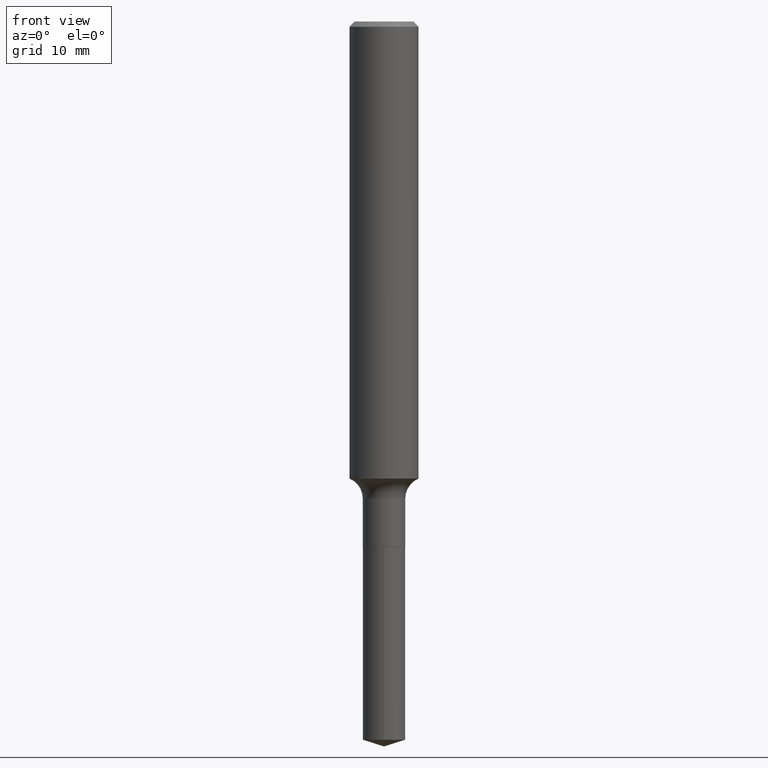
[diagram: clean part render]
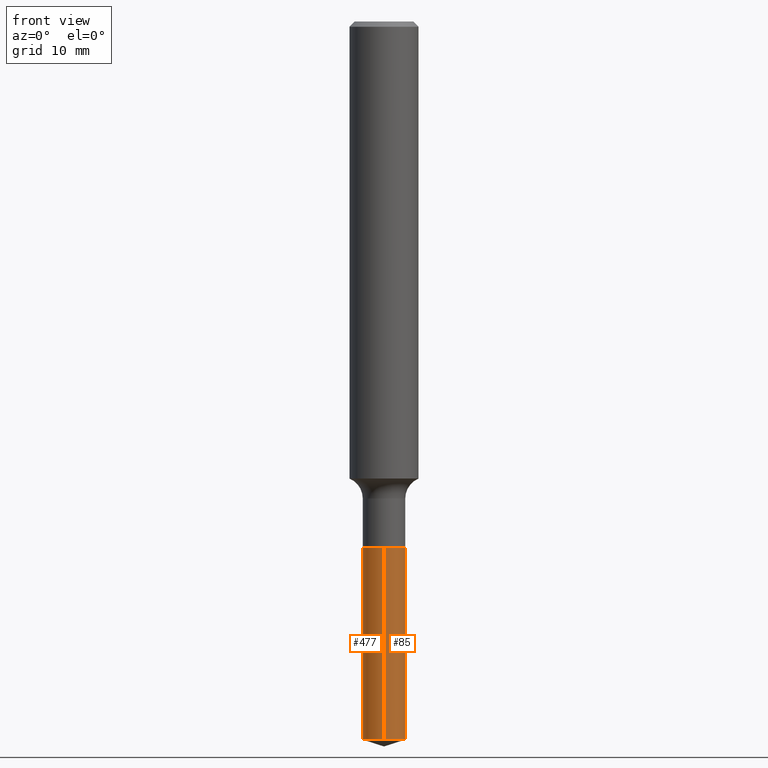
[diagram: same view with one multi-face feature highlighted, each face labeled with its STEP entity id]
A machine part, front view. The highlighted faces form ONE feature: a constant-radius fillet chain: 2 tangent blend faces with common blend radius 1.9558 mm. The faces share edges in the B-rep.
Their STEP definitions:
[1] entity #477 (Cylinder):
#1 = VERTEX_POINT ( 'NONE', #237 ) ;
#14 = CARTESIAN_POINT ( 'NONE',  ( 5.471179065353404421E-16, 0.07699999999999086742, -2.600721993256319475 ) ) ;
#20 = EDGE_CURVE ( 'NONE', #35, #359, #177, .T. ) ;
#23 = CARTESIAN_POINT ( 'NONE',  ( 6.359965980900373089E-29, -9.080398838931874452E-15, -2.600721993256319475 ) ) ;
#35 = VERTEX_POINT ( 'NONE', #122 ) ;
#38 = VERTEX_POINT ( 'NONE', #14 ) ;
#69 = FACE_OUTER_BOUND ( 'NONE', #370, .T. ) ;
#92 = CARTESIAN_POINT ( 'NONE',  ( 5.471179065353235802E-16, 0.07699999999999335154, -1.904000000000000137 ) ) ;
#94 = CARTESIAN_POINT ( 'NONE',  ( -5.376881261817957849E-16, -0.07700000000000663258, -1.903999999999999693 ) ) ;
#96 = DIRECTION ( 'NONE',  ( -2.445442214276503525E-29, 3.491519419969825765E-15, 1.000000000000000000 ) ) ;
#104 = DIRECTION ( 'NONE',  ( -2.445442214276503244E-29, 3.491519419969825765E-15, 1.000000000000000000 ) ) ;
#117 = AXIS2_PLACEMENT_3D ( 'NONE', #297, #104, #300 ) ;
#122 = CARTESIAN_POINT ( 'NONE',  ( 5.471179065353406393E-16, 0.07699999999999335154, -1.904000000000000137 ) ) ;
#138 = LINE ( 'NONE', #94, #413 ) ;
#157 = CARTESIAN_POINT ( 'NONE',  ( 4.656172606976500152E-29, -6.647780469157349069E-15, -1.903999999999999915 ) ) ;
#160 = DIRECTION ( 'NONE',  ( -2.445442214276503244E-29, 3.491519419969825765E-15, 1.000000000000000000 ) ) ;
#163 = ORIENTED_EDGE ( 'NONE', *, *, #20, .F. ) ;
#177 = CIRCLE ( 'NONE', #265, 0.07699999999999998512 ) ;
#201 = VECTOR ( 'NONE', #96, 39.37007874015748143 ) ;
#220 = AXIS2_PLACEMENT_3D ( 'NONE', #23, #402, #289 ) ;
#225 = EDGE_CURVE ( 'NONE', #1, #359, #138, .T. ) ;
#237 = CARTESIAN_POINT ( 'NONE',  ( -5.376881261817786271E-16, -0.07700000000000904732, -2.600721993256319475 ) ) ;
#247 = LINE ( 'NONE', #92, #201 ) ;
#265 = AXIS2_PLACEMENT_3D ( 'NONE', #157, #160, #273 ) ;
#268 = ORIENTED_EDGE ( 'NONE', *, *, #351, .T. ) ;
#273 = DIRECTION ( 'NONE',  ( -6.982962677686266711E-15, -1.000000000000000000, 3.547854537226316370E-15 ) ) ;
#289 = DIRECTION ( 'NONE',  ( -6.982962677686266711E-15, -1.000000000000000000, 0.000000000000000000 ) ) ;
#294 = ORIENTED_EDGE ( 'NONE', *, *, #225, .T. ) ;
#297 = CARTESIAN_POINT ( 'NONE',  ( 4.656172606976500152E-29, -6.647780469157349069E-15, -1.903999999999999915 ) ) ;
#300 = DIRECTION ( 'NONE',  ( -6.982962677686266711E-15, -1.000000000000000000, 3.547854537226316370E-15 ) ) ;
#336 = EDGE_CURVE ( 'NONE', #38, #35, #247, .T. ) ;
#351 = EDGE_CURVE ( 'NONE', #38, #1, #415, .T. ) ;
#359 = VERTEX_POINT ( 'NONE', #366 ) ;
#366 = CARTESIAN_POINT ( 'NONE',  ( -5.376881261817957849E-16, -0.07700000000000663258, -1.903999999999999693 ) ) ;
#370 = EDGE_LOOP ( 'NONE', ( #485, #268, #294, #163 ) ) ;
#402 = DIRECTION ( 'NONE',  ( -2.445442214276503244E-29, 3.491519419969825765E-15, 1.000000000000000000 ) ) ;
#413 = VECTOR ( 'NONE', #441, 39.37007874015748143 ) ;
#415 = CIRCLE ( 'NONE', #220, 0.07699999999999998512 ) ;
#441 = DIRECTION ( 'NONE',  ( -2.445442214276503525E-29, 3.491519419969825765E-15, 1.000000000000000000 ) ) ;
#477 = ADVANCED_FACE ( 'NONE', ( #69 ), #487, .T. ) ;
#485 = ORIENTED_EDGE ( 'NONE', *, *, #336, .F. ) ;
#487 = CYLINDRICAL_SURFACE ( 'NONE', #117, 0.07699999999999998512 ) ;
[2] entity #85 (Cylinder):
#1 = VERTEX_POINT ( 'NONE', #237 ) ;
#14 = CARTESIAN_POINT ( 'NONE',  ( 5.471179065353404421E-16, 0.07699999999999086742, -2.600721993256319475 ) ) ;
#21 = DIRECTION ( 'NONE',  ( -6.982962677686266711E-15, -1.000000000000000000, 0.000000000000000000 ) ) ;
#25 = DIRECTION ( 'NONE',  ( -2.445442214276503244E-29, 3.491519419969825765E-15, 1.000000000000000000 ) ) ;
#33 = EDGE_CURVE ( 'NONE', #359, #35, #58, .T. ) ;
#35 = VERTEX_POINT ( 'NONE', #122 ) ;
#38 = VERTEX_POINT ( 'NONE', #14 ) ;
#48 = AXIS2_PLACEMENT_3D ( 'NONE', #281, #235, #245 ) ;
#58 = CIRCLE ( 'NONE', #48, 0.07699999999999998512 ) ;
#61 = EDGE_LOOP ( 'NONE', ( #367, #153, #280, #373 ) ) ;
#65 = CARTESIAN_POINT ( 'NONE',  ( 6.359965980900373089E-29, -9.080398838931874452E-15, -2.600721993256319475 ) ) ;
#85 = ADVANCED_FACE ( 'NONE', ( #240 ), #429, .T. ) ;
#92 = CARTESIAN_POINT ( 'NONE',  ( 5.471179065353235802E-16, 0.07699999999999335154, -1.904000000000000137 ) ) ;
#94 = CARTESIAN_POINT ( 'NONE',  ( -5.376881261817957849E-16, -0.07700000000000663258, -1.903999999999999693 ) ) ;
#96 = DIRECTION ( 'NONE',  ( -2.445442214276503525E-29, 3.491519419969825765E-15, 1.000000000000000000 ) ) ;
#122 = CARTESIAN_POINT ( 'NONE',  ( 5.471179065353406393E-16, 0.07699999999999335154, -1.904000000000000137 ) ) ;
#124 = DIRECTION ( 'NONE',  ( -6.982962677686266711E-15, -1.000000000000000000, 3.547854537226316370E-15 ) ) ;
#138 = LINE ( 'NONE', #94, #413 ) ;
#153 = ORIENTED_EDGE ( 'NONE', *, *, #336, .T. ) ;
#201 = VECTOR ( 'NONE', #96, 39.37007874015748143 ) ;
#225 = EDGE_CURVE ( 'NONE', #1, #359, #138, .T. ) ;
#235 = DIRECTION ( 'NONE',  ( -2.445442214276503244E-29, 3.491519419969825765E-15, 1.000000000000000000 ) ) ;
#237 = CARTESIAN_POINT ( 'NONE',  ( -5.376881261817786271E-16, -0.07700000000000904732, -2.600721993256319475 ) ) ;
#240 = FACE_OUTER_BOUND ( 'NONE', #61, .T. ) ;
#245 = DIRECTION ( 'NONE',  ( -6.982962677686266711E-15, -1.000000000000000000, 3.547854537226316370E-15 ) ) ;
#247 = LINE ( 'NONE', #92, #201 ) ;
#255 = EDGE_CURVE ( 'NONE', #1, #38, #396, .T. ) ;
#280 = ORIENTED_EDGE ( 'NONE', *, *, #33, .F. ) ;
#281 = CARTESIAN_POINT ( 'NONE',  ( 4.656172606976500152E-29, -6.647780469157349069E-15, -1.903999999999999915 ) ) ;
#290 = AXIS2_PLACEMENT_3D ( 'NONE', #353, #348, #124 ) ;
#327 = AXIS2_PLACEMENT_3D ( 'NONE', #65, #25, #21 ) ;
#336 = EDGE_CURVE ( 'NONE', #38, #35, #247, .T. ) ;
#348 = DIRECTION ( 'NONE',  ( -2.445442214276503244E-29, 3.491519419969825765E-15, 1.000000000000000000 ) ) ;
#353 = CARTESIAN_POINT ( 'NONE',  ( 4.656172606976500152E-29, -6.647780469157349069E-15, -1.903999999999999915 ) ) ;
#359 = VERTEX_POINT ( 'NONE', #366 ) ;
#366 = CARTESIAN_POINT ( 'NONE',  ( -5.376881261817957849E-16, -0.07700000000000663258, -1.903999999999999693 ) ) ;
#367 = ORIENTED_EDGE ( 'NONE', *, *, #255, .T. ) ;
#373 = ORIENTED_EDGE ( 'NONE', *, *, #225, .F. ) ;
#396 = CIRCLE ( 'NONE', #327, 0.07699999999999998512 ) ;
#413 = VECTOR ( 'NONE', #441, 39.37007874015748143 ) ;
#429 = CYLINDRICAL_SURFACE ( 'NONE', #290, 0.07699999999999998512 ) ;
#441 = DIRECTION ( 'NONE',  ( -2.445442214276503525E-29, 3.491519419969825765E-15, 1.000000000000000000 ) ) ;